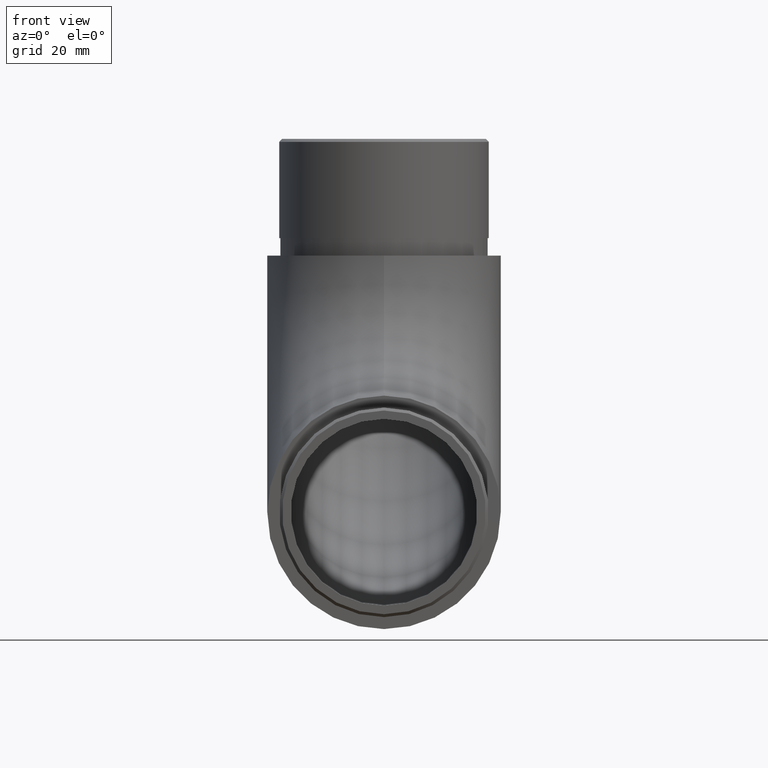
[diagram: clean part render]
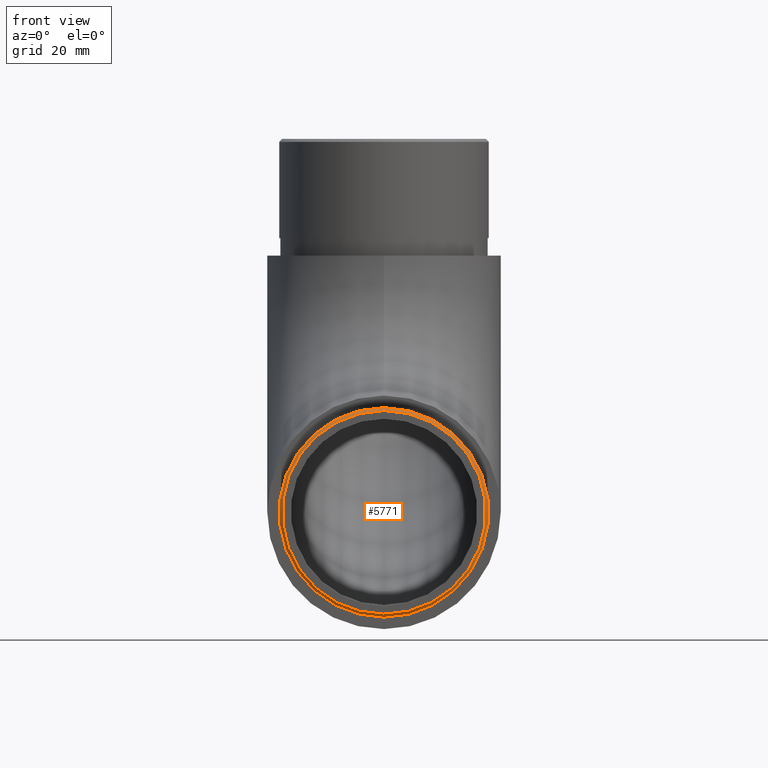
[diagram: same view with one face highlighted and labeled with its STEP entity id]
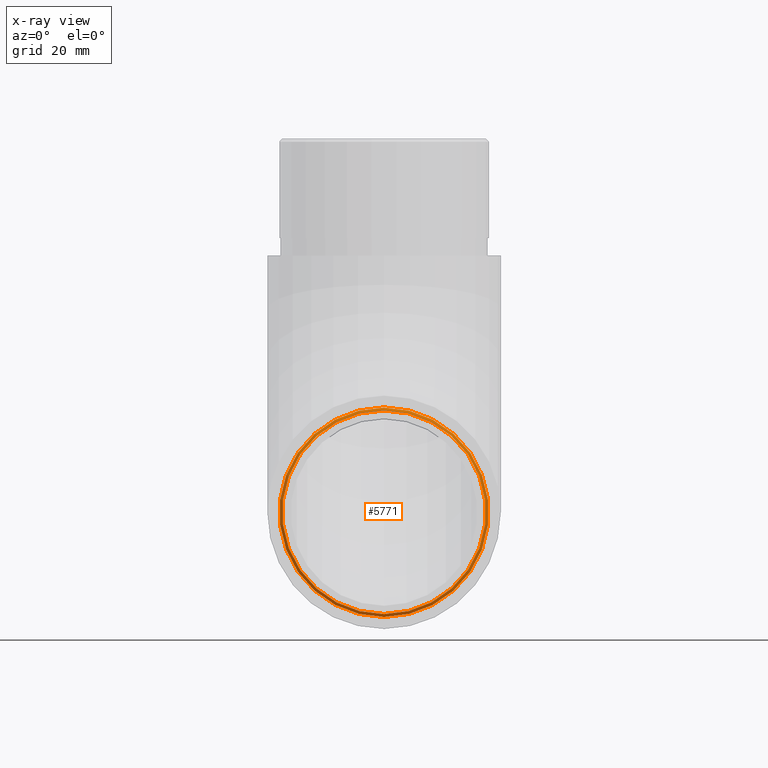
[diagram: x-ray of the same camera — body ghosted, the highlighted face saturated]
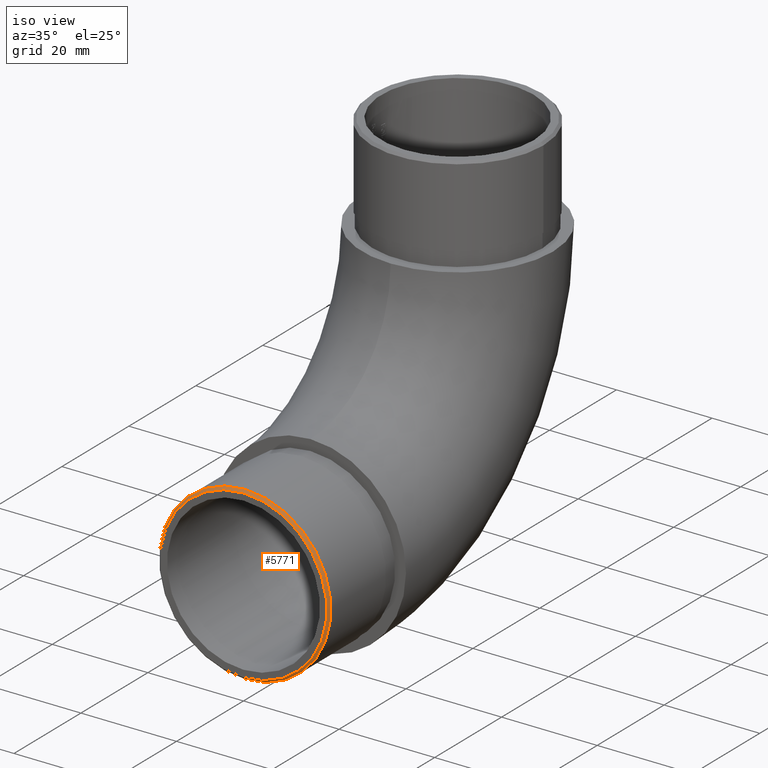
[diagram: same view with one face highlighted and labeled with its STEP entity id]
A machine part, front view. The second image highlights one B-rep face of the part: STEP entity #5771.
The next image is the same camera in x-ray: the body ghosted, the highlighted face saturated — about 0% of this face is hidden behind the body in this view.
A second angle (iso view) of the same face is appended — the face is thin or edge-on in the first view.
In plain terms, the highlighted conical surface has half-angle 45 deg.
Its self-contained STEP definition (entity closure, byte-faithful):
#1 = CIRCLE ( 'NONE', #7705, 17.44999999999999200 ) ;
#294 = CARTESIAN_POINT ( 'NONE',  ( 0.0000000000000000000, -20.00000000000000000, 2.550000000000017600 ) ) ;
#302 = DIRECTION ( 'NONE',  ( 0.0000000000000000000, 0.0000000000000000000, 1.000000000000000000 ) ) ;
#1321 = CONICAL_SURFACE ( 'NONE', #1356, 17.44999999999999200, 0.7853981633974415100 ) ;
#1356 = AXIS2_PLACEMENT_3D ( 'NONE', #12572, #9393, #302 ) ;
#1933 = CARTESIAN_POINT ( 'NONE',  ( 0.0000000000000000000, -19.49999999999998600, 20.00000000000001100 ) ) ;
#2316 = ORIENTED_EDGE ( 'NONE', *, *, #9012, .F. ) ;
#3044 = VERTEX_POINT ( 'NONE', #294 ) ;
#4648 = EDGE_LOOP ( 'NONE', ( #2316 ) ) ;
#5771 = ADVANCED_FACE ( 'NONE', ( #12018, #8449 ), #1321, .T. ) ;
#6595 = CIRCLE ( 'NONE', #8059, 17.94999999999999900 ) ;
#7405 = VERTEX_POINT ( 'NONE', #9516 ) ;
#7705 = AXIS2_PLACEMENT_3D ( 'NONE', #8949, #8815, #13094 ) ;
#8059 = AXIS2_PLACEMENT_3D ( 'NONE', #1933, #10077, #8176 ) ;
#8176 = DIRECTION ( 'NONE',  ( 0.0000000000000000000, 0.0000000000000000000, -1.000000000000000000 ) ) ;
#8248 = EDGE_LOOP ( 'NONE', ( #9113 ) ) ;
#8449 = FACE_BOUND ( 'NONE', #4648, .T. ) ;
#8815 = DIRECTION ( 'NONE',  ( 0.0000000000000000000, -1.000000000000000000, 0.0000000000000000000 ) ) ;
#8949 = CARTESIAN_POINT ( 'NONE',  ( 0.0000000000000000000, -20.00000000000000000, 20.00000000000001100 ) ) ;
#9012 = EDGE_CURVE ( 'NONE', #3044, #3044, #1, .T. ) ;
#9113 = ORIENTED_EDGE ( 'NONE', *, *, #11373, .F. ) ;
#9393 = DIRECTION ( 'NONE',  ( 0.0000000000000000000, 1.000000000000000000, 0.0000000000000000000 ) ) ;
#9516 = CARTESIAN_POINT ( 'NONE',  ( 0.0000000000000000000, -19.49999999999998600, 2.050000000000010000 ) ) ;
#10077 = DIRECTION ( 'NONE',  ( 0.0000000000000000000, 1.000000000000000000, 0.0000000000000000000 ) ) ;
#11373 = EDGE_CURVE ( 'NONE', #7405, #7405, #6595, .T. ) ;
#12018 = FACE_OUTER_BOUND ( 'NONE', #8248, .T. ) ;
#12572 = CARTESIAN_POINT ( 'NONE',  ( 0.0000000000000000000, -20.00000000000000000, 20.00000000000001100 ) ) ;
#13094 = DIRECTION ( 'NONE',  ( 0.0000000000000000000, 0.0000000000000000000, -1.000000000000000000 ) ) ;